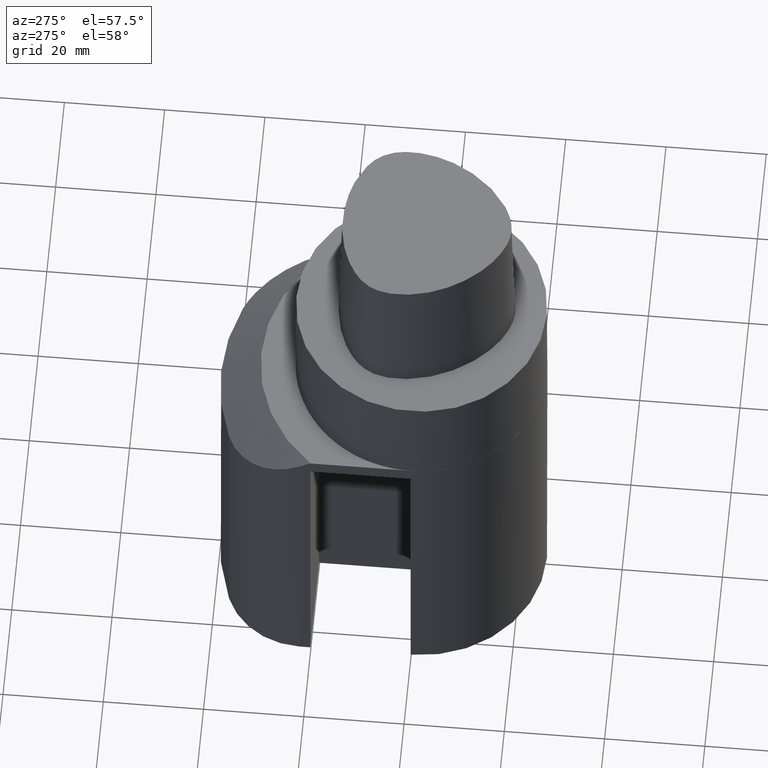
[diagram: clean part render]
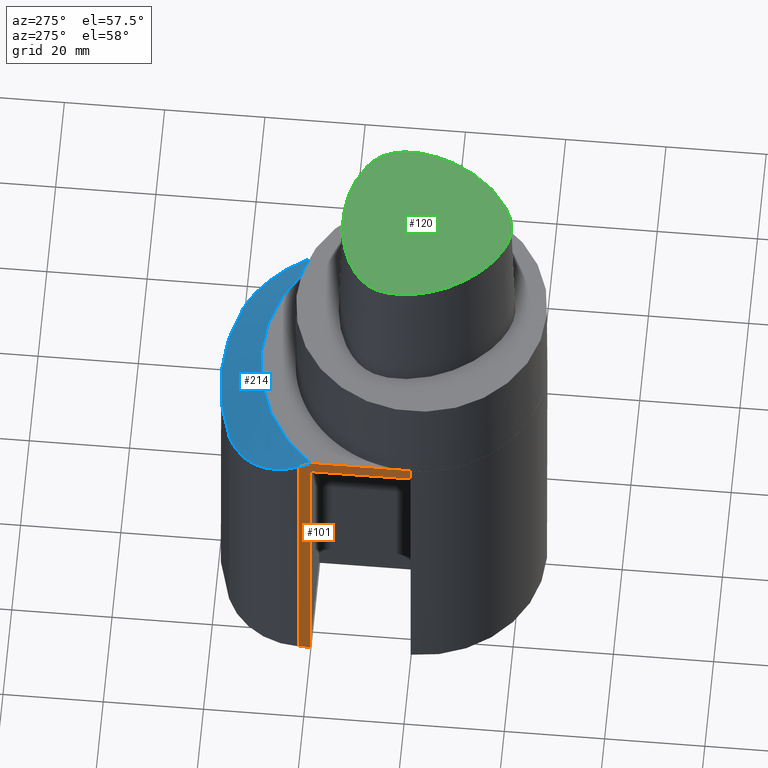
[diagram: same view with three faces highlighted in distinct colors, each labeled with its STEP entity id]
A machine part, auxiliary view with three faces highlighted in distinct colors.
Their STEP definitions:

[orange] entity #101 — the highlighted planar face has unit normal (1, 0, 0).
#88=EDGE_CURVE('240[2]',#252,#253,#254,.T.);
#101=ADVANCED_FACE('240[2]',(#275),#276,.F.);
#134=EDGE_CURVE('240[2]',#325,#252,#326,.T.);
#143=EDGE_CURVE('240[2]',#337,#288,#338,.F.);
#145=EDGE_CURVE('240[2]',#288,#314,#340,.T.);
#147=EDGE_CURVE('240[2]',#342,#253,#343,.T.);
#167=EDGE_CURVE('240[2]',#337,#325,#369,.T.);
#200=EDGE_CURVE('240[2]',#314,#342,#408,.T.);
#252=VERTEX_POINT('',#459);
#253=VERTEX_POINT('',#460);
#254=LINE('',#461,#462);
#275=FACE_OUTER_BOUND('',#518,.T.);
#276=PLANE('',#519);
#288=VERTEX_POINT('',#545);
#314=VERTEX_POINT('',#582);
#325=VERTEX_POINT('',#598);
#326=(B_SPLINE_CURVE(2,(#600,#601,#602),.UNSPECIFIED.,.F.,.F.)B_SPLINE_CURVE_WITH_KNOTS((3,3),(10.7691470166824,13.8090639796133),.UNSPECIFIED.)RATIONAL_B_SPLINE_CURVE((1.00426970232956,1.00273747737641,1.0))BOUNDED_CURVE()REPRESENTATION_ITEM('')GEOMETRIC_REPRESENTATION_ITEM()CURVE());
#337=VERTEX_POINT('',#623);
#338=LINE('',#624,#625);
#340=LINE('',#628,#629);
#342=VERTEX_POINT('',#632);
#343=LINE('',#633,#634);
#369=LINE('',#1148,#1149);
#408=LINE('',#1298,#1299);
#459=CARTESIAN_POINT('',(-25.0,19.9749843554335,-22.0000000000005));
#460=CARTESIAN_POINT('',(-25.0,-3.75166564481333E-012,-21.9999999999998));
#461=CARTESIAN_POINT('',(-25.0,19.8096488653189,-21.9999999999998));
#462=VECTOR('',#1358,1.0);
#518=EDGE_LOOP('',(#1364,#1365,#1366,#1367,#1368,#1369,#1370));
#519=AXIS2_PLACEMENT_3D('',#1371,#1372,#1373);
#545=CARTESIAN_POINT('',(-25.0,19.9999999999962,-90.0000000000002));
#582=CARTESIAN_POINT('',(-25.0,19.9999999999962,-25.0000000000009));
#598=CARTESIAN_POINT('',(-25.0,22.2485954612832,-23.466401061364));
#600=CARTESIAN_POINT('',(-25.0,22.2485954612833,-23.4664010613641));
#601=CARTESIAN_POINT('',(-25.0,21.0863262683478,-22.6937199163756));
#602=CARTESIAN_POINT('',(-25.0,19.9749843554322,-21.9999999999997));
#623=CARTESIAN_POINT('',(-25.0,22.2485954612832,-90.0000000000003));
#624=CARTESIAN_POINT('',(-25.0,15.5621488653213,-90.0));
#625=VECTOR('',#1423,1.0);
#628=CARTESIAN_POINT('',(-25.0,19.9999999999962,-263.139999954391));
#629=VECTOR('',#1424,1.0);
#632=CARTESIAN_POINT('',(-25.0,-3.75166564481333E-012,-25.0000000000009));
#633=CARTESIAN_POINT('',(-25.0,-3.75166564481333E-012,-263.139999954391));
#634=VECTOR('',#1425,1.0);
#1148=CARTESIAN_POINT('',(-25.0,22.2485954612832,-263.139999954391));
#1149=VECTOR('',#1464,1.0);
#1298=CARTESIAN_POINT('',(-25.0,10.562148865318,-25.0000000000009));
#1299=VECTOR('',#1508,1.0);
#1358=DIRECTION('',(1.23259516440783E-032,-1.0,-1.22464679914735E-016));
#1364=ORIENTED_EDGE('',*,*,#200,.T.);
#1365=ORIENTED_EDGE('',*,*,#147,.T.);
#1366=ORIENTED_EDGE('',*,*,#88,.F.);
#1367=ORIENTED_EDGE('',*,*,#134,.F.);
#1368=ORIENTED_EDGE('',*,*,#167,.F.);
#1369=ORIENTED_EDGE('',*,*,#143,.T.);
#1370=ORIENTED_EDGE('',*,*,#145,.T.);
#1371=CARTESIAN_POINT('',(-25.0,11.1242977306397,-263.139999954391));
#1372=DIRECTION('',(1.0,8.57655218742367E-033,5.25162359202432E-049));
#1373=DIRECTION('',(0.0,-6.12323399573677E-017,1.0));
#1423=DIRECTION('',(-8.57655218742367E-033,1.0,-3.68257575796109E-014));
#1424=DIRECTION('',(-6.12323399573677E-017,-1.22464679914735E-016,1.0));
#1425=DIRECTION('',(-6.12323399573677E-017,-1.22464679914735E-016,1.0));
#1464=DIRECTION('',(-6.12323399573677E-017,-1.22464679914735E-016,1.0));
#1508=DIRECTION('',(1.23259516440783E-032,-1.0,-1.22464679914735E-016));

[blue] entity #214 — the highlighted conical surface has half-angle 45 deg.
#96=EDGE_CURVE('240[2]',#267,#268,#269,.T.);
#103=EDGE_CURVE('240[2]',#264,#267,#278,.T.);
#125=EDGE_CURVE('240[2]',#281,#268,#312,.T.);
#134=EDGE_CURVE('240[2]',#325,#252,#326,.T.);
#172=EDGE_CURVE('240[2]',#281,#325,#375,.T.);
#202=EDGE_CURVE('240[2]',#252,#264,#410,.T.);
#214=ADVANCED_FACE('240[2]',(#426),#427,.T.);
#252=VERTEX_POINT('',#459);
#264=VERTEX_POINT('',#476);
#267=VERTEX_POINT('',#483);
#268=VERTEX_POINT('',#484);
#269=B_SPLINE_CURVE_WITH_KNOTS('',3,(#485,#486,#487,#488,#489,#490,#491,#492,#493,#494,#495,#496,#497,#498,#499,#500,#501,#502),.UNSPECIFIED.,.F.,.F.,(4,3,3,3,3,2,4),(7.4610371083688,9.74245633401,12.98994177868,15.625256499881,17.4879813303238,22.7440683713327,23.1527132027564),.UNSPECIFIED.);
#278=B_SPLINE_CURVE_WITH_KNOTS('',3,(#522,#523,#524,#525,#526,#527,#528,#529,#530),.UNSPECIFIED.,.F.,.F.,(4,3,2,4),(-2.26382453389989,0.0,1.97648813900685,4.03574570980242),.UNSPECIFIED.);
#281=VERTEX_POINT('',#534);
#312=CIRCLE('',#579,39.9999999999973);
#325=VERTEX_POINT('',#598);
#326=(B_SPLINE_CURVE(2,(#600,#601,#602),.UNSPECIFIED.,.F.,.F.)B_SPLINE_CURVE_WITH_KNOTS((3,3),(10.7691470166824,13.8090639796133),.UNSPECIFIED.)RATIONAL_B_SPLINE_CURVE((1.00426970232956,1.00273747737641,1.0))BOUNDED_CURVE()REPRESENTATION_ITEM('')GEOMETRIC_REPRESENTATION_ITEM()CURVE());
#375=B_SPLINE_CURVE_WITH_KNOTS('',3,(#1184,#1185,#1186,#1187,#1188,#1189,#1190,#1191,#1192,#1193,#1194,#1195,#1196,#1197,#1198,#1199),.UNSPECIFIED.,.F.,.F.,(4,2,2,2,2,2,2,4),(23.5284476815128,26.1635051094531,28.7985625373922,31.4336199653313,34.0686773932704,37.3157318857098,40.5627863781492,42.974481583249),.UNSPECIFIED.);
#410=CIRCLE('',#1302,31.9999999999976);
#426=FACE_OUTER_BOUND('',#1322,.T.);
#427=CONICAL_SURFACE('',#1323,35.9999999999974,0.785398163397467);
#459=CARTESIAN_POINT('',(-25.0,19.9749843554335,-22.0000000000005));
#476=CARTESIAN_POINT('',(24.999733618575,19.975317744732,-22.0000000000234));
#483=CARTESIAN_POINT('',(24.7022320764097,25.3068946513365,-25.36437736552));
#484=CARTESIAN_POINT('',(15.2871730443481,36.9635271627569,-29.9999999999993));
#485=CARTESIAN_POINT('',(24.7022320764097,25.3068946513365,-25.36437736552));
#486=CARTESIAN_POINT('',(24.5675224778467,25.9994617537622,-25.7658857757116));
#487=CARTESIAN_POINT('',(24.3853392511305,26.6900616343009,-26.1472100658429));
#488=CARTESIAN_POINT('',(24.1569628271243,27.3669572021449,-26.5035505058805));
#489=CARTESIAN_POINT('',(23.8318804816568,28.3304839750541,-27.0107831877845));
#490=CARTESIAN_POINT('',(23.4124036950952,29.2661572440479,-27.4672102775464));
#491=CARTESIAN_POINT('',(22.9157536404162,30.1422947407208,-27.8640950921189));
#492=CARTESIAN_POINT('',(22.5127251364612,30.8532749997909,-28.1861647094533));
#493=CARTESIAN_POINT('',(22.0325883463075,31.5711248067226,-28.4897294259004));
#494=CARTESIAN_POINT('',(21.4788803722165,32.2616177166729,-28.7576351154329));
#495=CARTESIAN_POINT('',(21.0875018458281,32.7496802157216,-28.9469994354113));
#496=CARTESIAN_POINT('',(20.6595695538381,33.2242177810881,-29.118722479627));
#497=CARTESIAN_POINT('',(20.1998899959847,33.6750557265264,-29.2688799691926));
#498=CARTESIAN_POINT('',(18.9028032080905,34.9471939639544,-29.692582290715));
#499=CARTESIAN_POINT('',(17.3784175904185,36.0078292526934,-29.9386830718968));
#500=CARTESIAN_POINT('',(15.5526095716002,36.8478925389709,-29.9953728017106));
#501=CARTESIAN_POINT('',(15.4202132381684,36.9066395170841,-29.9982760107176));
#502=CARTESIAN_POINT('',(15.2871730443481,36.9635271627569,-29.9999999999993));
#522=CARTESIAN_POINT('',(24.999733618575,19.975317744732,-22.0000000000234));
#523=CARTESIAN_POINT('',(24.964072459181,20.6326709802224,-22.3824787582751));
#524=CARTESIAN_POINT('',(24.9288252661883,21.2823934443671,-22.7739661897671));
#525=CARTESIAN_POINT('',(24.8940725115701,21.9230017722711,-23.1712654705626));
#526=CARTESIAN_POINT('',(24.8637307574845,22.4823007563094,-23.5181374583732));
#527=CARTESIAN_POINT('',(24.8328365641622,23.0385435925157,-23.8713216388257));
#528=CARTESIAN_POINT('',(24.7689102454555,24.1661159586857,-24.6021247330927));
#529=CARTESIAN_POINT('',(24.7357626897109,24.7385137580943,-24.9810629851882));
#530=CARTESIAN_POINT('',(24.7022320764097,25.3068946513365,-25.36437736552));
#534=CARTESIAN_POINT('',(-14.9999999999999,37.0809924354746,-30.0000000000007));
#579=AXIS2_PLACEMENT_3D('',#1396,#1397,#1398);
#598=CARTESIAN_POINT('',(-25.0,22.2485954612832,-23.466401061364));
#600=CARTESIAN_POINT('',(-25.0,22.2485954612833,-23.4664010613641));
#601=CARTESIAN_POINT('',(-25.0,21.0863262683478,-22.6937199163756));
#602=CARTESIAN_POINT('',(-25.0,19.9749843554322,-21.9999999999997));
#1184=CARTESIAN_POINT('',(-15.0000000000002,37.0809924354744,-30.0000000000007));
#1185=CARTESIAN_POINT('',(-15.8142545379377,36.7516102569818,-30.0000000000007));
#1186=CARTESIAN_POINT('',(-16.6279567442258,36.3430416121195,-29.9559141211588));
#1187=CARTESIAN_POINT('',(-18.1867316651038,35.3803545858274,-29.7705437909274));
#1188=CARTESIAN_POINT('',(-18.9318393418272,34.8262885874262,-29.6292812996166));
#1189=CARTESIAN_POINT('',(-20.3029619384396,33.6100588488435,-29.2560993606877));
#1190=CARTESIAN_POINT('',(-20.9301471830432,32.9469518283865,-29.0238542363534));
#1191=CARTESIAN_POINT('',(-22.0372760891465,31.5659273198522,-28.4881515346753));
#1192=CARTESIAN_POINT('',(-22.5172772851337,30.8480739294063,-28.1846476258228));
#1193=CARTESIAN_POINT('',(-23.4166631892578,29.2610032388611,-27.4658488429808));
#1194=CARTESIAN_POINT('',(-23.8359856580691,28.325385223544,-27.0095256242477));
#1195=CARTESIAN_POINT('',(-24.4858780145183,26.3984661226904,-25.9952852785824));
#1196=CARTESIAN_POINT('',(-24.7166021467317,25.4072474769729,-25.4373103704645));
#1197=CARTESIAN_POINT('',(-24.9520041598144,23.6904653487833,-24.4018891330599));
#1198=CARTESIAN_POINT('',(-24.9997182469205,22.9615605249888,-23.9402235092718));
#1199=CARTESIAN_POINT('',(-24.9998756102743,22.2486281925418,-23.4663517764093));
#1302=AXIS2_PLACEMENT_3D('',#1509,#1510,#1511);
#1322=EDGE_LOOP('',(#1536,#1537,#1538,#1539,#1540,#1541));
#1323=AXIS2_PLACEMENT_3D('',#1542,#1543,#1544);
#1396=CARTESIAN_POINT('',(1.83697019872099E-015,-1.02318153949454E-012,-29.9999999999993));
#1397=DIRECTION('',(6.12323399573677E-017,-3.61987396425892E-014,-1.0));
#1398=DIRECTION('',(2.2117063790925E-030,1.0,-3.61987396425892E-014));
#1509=CARTESIAN_POINT('',(1.34711147906208E-015,-7.38964445190504E-013,-21.9999999999998));
#1510=DIRECTION('',(6.12323399573677E-017,-3.61987396425892E-014,-1.0));
#1511=DIRECTION('',(2.2117063790925E-030,1.0,-3.61987396425892E-014));
#1536=ORIENTED_EDGE('',*,*,#103,.T.);
#1537=ORIENTED_EDGE('',*,*,#96,.T.);
#1538=ORIENTED_EDGE('',*,*,#125,.F.);
#1539=ORIENTED_EDGE('',*,*,#172,.T.);
#1540=ORIENTED_EDGE('',*,*,#134,.T.);
#1541=ORIENTED_EDGE('',*,*,#202,.T.);
#1542=CARTESIAN_POINT('',(1.59204083889153E-015,-8.5265128291212E-013,-25.9999999999995));
#1543=DIRECTION('',(6.12323399573677E-017,-3.61987396425892E-014,-1.0));
#1544=DIRECTION('',(2.2117063790925E-030,1.0,-3.61987396425892E-014));

[green] entity #120 — the highlighted planar face has unit normal (-0, 0, 1).
#120=ADVANCED_FACE('240[2]',(#304),#305,.T.);
#177=EDGE_CURVE('240[2]',#381,#381,#382,.T.);
#304=FACE_OUTER_BOUND('',#569,.T.);
#305=PLANE('',#570);
#381=VERTEX_POINT('',#1207);
#382=B_SPLINE_CURVE_WITH_KNOTS('',3,(#1208,#1209,#1210,#1211,#1212,#1213,#1214,#1215,#1216,#1217,#1218,#1219,#1220,#1221,#1222,#1223,#1224,#1225,#1226,#1227,#1228,#1229,#1230,#1231,#1232,#1233,#1234,#1235,#1236,#1237,#1238,#1239,#1240,#1241,#1242,#1243,#1244,#1245,#1246,#1247,#1248,#1249,#1250,#1251,#1252,#1253,#1254,#1255,#1256),.UNSPECIFIED.,.T.,.F.,(4,1,1,1,1,1,1,1,1,1,1,1,1,1,1,1,1,1,1,1,1,1,1,1,1,1,1,1,1,1,1,1,1,1,1,1,1,1,1,1,1,1,1,1,1,1,4),(0.0,0.023135829350767,0.046149078767971,0.068686553945372,0.09058948843834,0.11187442371895,0.132659030725504,0.153111474090064,0.173428097006866,0.193812703683075,0.214465113334926,0.235566638619369,0.257256396596226,0.279590584305387,0.302476275092963,0.325611612149197,0.348735785989546,0.371826971229282,0.39455923139207,0.416669726533691,0.438154204641074,0.459103554741756,0.479643077908811,0.50010643098029,0.520399705216369,0.54092682403315,0.561890845659905,0.583370991138857,0.605476574502583,0.62820876493626,0.65131550684809,0.674427687768046,0.697531018602722,0.720425222070344,0.742763449220249,0.764449723968905,0.785551037463572,0.806204240231889,0.826588983931571,0.846905402970388,0.867357715119018,0.88814171778586,0.909429413217286,0.931324749020081,0.953885589892717,0.976862732393428,1.0),.UNSPECIFIED.);
#569=EDGE_LOOP('',(#1386));
#570=AXIS2_PLACEMENT_3D('',#1387,#1388,#1389);
#1207=CARTESIAN_POINT('',(-2.78602932413959E-015,-17.9423775546504,30.0));
#1208=CARTESIAN_POINT('',(-2.78602932413959E-015,-17.9423775546504,30.0));
#1209=CARTESIAN_POINT('',(-0.814120797978075,-17.9643878187761,30.0));
#1210=CARTESIAN_POINT('',(-2.44279318309434,-17.6670056599032,30.0));
#1211=CARTESIAN_POINT('',(-4.69065600148019,-16.7591312239375,30.0));
#1212=CARTESIAN_POINT('',(-6.73157621234646,-15.527654017863,30.0));
#1213=CARTESIAN_POINT('',(-8.55606567082544,-14.0980586872352,30.0));
#1214=CARTESIAN_POINT('',(-10.1771160862307,-12.5294920614813,30.0));
#1215=CARTESIAN_POINT('',(-11.6098311271326,-10.8549672983455,30.0));
#1216=CARTESIAN_POINT('',(-12.8723444784573,-9.09084166630709,30.0));
#1217=CARTESIAN_POINT('',(-13.9762474627415,-7.23982146073081,30.0));
#1218=CARTESIAN_POINT('',(-14.9241349859217,-5.29636298798721,30.0));
#1219=CARTESIAN_POINT('',(-15.7132736469777,-3.25333571586589,30.0));
#1220=CARTESIAN_POINT('',(-16.3266313043064,-1.10238675181427,30.0));
#1221=CARTESIAN_POINT('',(-16.7327867713303,1.15808256309651,30.0));
#1222=CARTESIAN_POINT('',(-16.8801613787167,3.51564121263175,30.0));
#1223=CARTESIAN_POINT('',(-16.6855836228514,5.92229128835703,30.0));
#1224=CARTESIAN_POINT('',(-16.0281509658443,8.29517868854447,30.0));
#1225=CARTESIAN_POINT('',(-14.6640408300166,10.3669104243273,30.0));
#1226=CARTESIAN_POINT('',(-12.8332969997264,11.9882678763451,30.0));
#1227=CARTESIAN_POINT('',(-10.7856401290832,13.2404482750702,30.0));
#1228=CARTESIAN_POINT('',(-8.65298741417579,14.19764142693,30.0));
#1229=CARTESIAN_POINT('',(-6.48957622042645,14.9235651413533,30.0));
#1230=CARTESIAN_POINT('',(-4.30784954842127,15.2925809723717,30.0));
#1231=CARTESIAN_POINT('',(-2.16867899857279,15.8525920055235,30.0));
#1232=CARTESIAN_POINT('',(-0.0054980597270801,15.506533819507,30.0));
#1233=CARTESIAN_POINT('',(2.15423811148254,15.6758925558313,30.0));
#1234=CARTESIAN_POINT('',(4.31367631773855,15.3366483013887,30.0));
#1235=CARTESIAN_POINT('',(6.49156913463884,14.9221231752341,30.0));
#1236=CARTESIAN_POINT('',(8.65317555043793,14.199841033848,30.0));
#1237=CARTESIAN_POINT('',(10.7855591317115,13.2388028674922,30.0));
#1238=CARTESIAN_POINT('',(12.8289446834375,11.9844078416963,30.0));
#1239=CARTESIAN_POINT('',(14.6809214389867,10.37934328945,30.0));
#1240=CARTESIAN_POINT('',(15.9964040236072,8.28000660116027,30.0));
#1241=CARTESIAN_POINT('',(16.6999197177274,5.92601467018835,30.0));
#1242=CARTESIAN_POINT('',(16.8785470495877,3.51485696104407,30.0));
#1243=CARTESIAN_POINT('',(16.7308989568545,1.15864914401016,30.0));
#1244=CARTESIAN_POINT('',(16.3270119409732,-1.10262794482628,30.0));
#1245=CARTESIAN_POINT('',(15.7138840293007,-3.25349612648563,30.0));
#1246=CARTESIAN_POINT('',(14.9244427410538,-5.29647704660135,30.0));
#1247=CARTESIAN_POINT('',(13.9756636589241,-7.23950698099947,30.0));
#1248=CARTESIAN_POINT('',(12.8724663956831,-9.09088034657935,30.0));
#1249=CARTESIAN_POINT('',(11.6099597844916,-10.8551381410581,30.0));
#1250=CARTESIAN_POINT('',(10.1759690661341,-12.5282962499649,30.0));
#1251=CARTESIAN_POINT('',(8.55887653552809,-14.1013446755591,30.0));
#1252=CARTESIAN_POINT('',(6.72595297076831,-15.5205541881092,30.0));
#1253=CARTESIAN_POINT('',(4.69995925068727,-16.7729025475684,30.0));
#1254=CARTESIAN_POINT('',(2.43523789305481,-17.660279021922,30.0));
#1255=CARTESIAN_POINT('',(0.814171408394767,-17.9203659222405,30.0));
#1256=CARTESIAN_POINT('',(-2.83508942413959E-015,-17.9423775546504,30.0));
#1386=ORIENTED_EDGE('',*,*,#177,.F.);
#1387=CARTESIAN_POINT('',(-0.000657534264248203,-1.65575572608799,30.0));
#1388=DIRECTION('',(-0.0,2.95577857036584E-049,1.0));
#1389=DIRECTION('',(1.0,0.0,0.0));